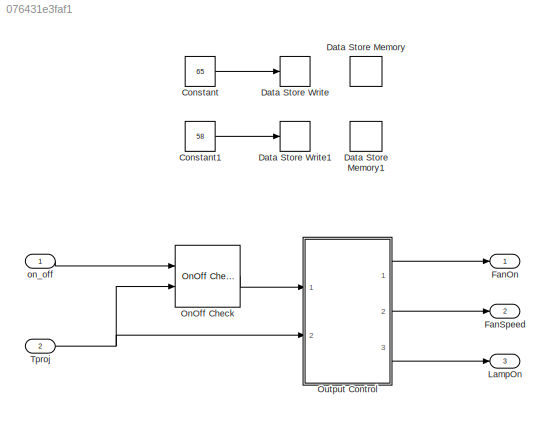
MODEL slx_076431e3faf1
KIND model
CONFIG AbsTol = auto
CONFIG FixedStep = 0.1
CONFIG MaxStep = auto
CONFIG MinStep = auto
CONFIG RelTol = 1e-3
CONFIG SampleTimeConstraint = Unconstrained
CONFIG Solver = FixedStepDiscrete
CONFIG SolverMode = Auto
CONFIG SolverName = FixedStepDiscrete
CONFIG StartTime = 0.0
CONFIG StopTime = 30
BLOCK [Constant] Constant
  OutDataTypeStr = single
  Value = 65
BLOCK [Constant] Constant1
  OutDataTypeStr = single
  Value = 58
BLOCK [DataStoreMemory] Data Store Memory
  DataStoreName = Tmax
  OutDataTypeStr = single
  ReadBeforeWriteMsg = warning
  ShowAdditionalParam = off
  SignalType = real
  WriteAfterReadMsg = warning
  WriteAfterWriteMsg = warning
BLOCK [DataStoreMemory] Data Store Memory1
  DataStoreName = Tfan
  OutDataTypeStr = single
  ReadBeforeWriteMsg = warning
  ShowAdditionalParam = off
  SignalType = real
  WriteAfterReadMsg = warning
  WriteAfterWriteMsg = warning
BLOCK [DataStoreWrite] Data Store Write
  DataStoreName = Tmax
  Ports = [1]
BLOCK [DataStoreWrite] Data Store Write1
  DataStoreName = Tfan
  Ports = [1]
BLOCK [Outport] FanOn
  IconDisplay = Port number
BLOCK [Outport] FanSpeed
  IconDisplay = Port number
  Port = 2
BLOCK [Outport] LampOn
  IconDisplay = Port number
  Port = 3
BLOCK [Reference] OnOff Check  REF=sltestProjectorCtrlLibrary/OnOff Check
  Ports = [2, 1]
  SourceBlock = sltestProjectorCtrlLibrary/OnOff Check
  SourceType = SubSystem
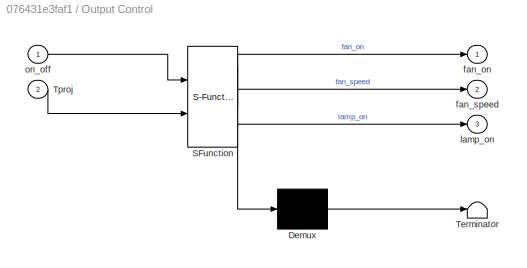
BLOCK [SubSystem] Output Control
  ErrorFcn = Stateflow.Translate.translate
  PermitHierarchicalResolution = ExplicitOnly
  Ports = [2, 3]
  RequestExecContextInheritance = off
  SFBlockType = Chart
  TreatAsAtomicUnit = on
  Variant = off
BLOCK [Demux] Output Control/ Demux 
  Outputs = 1
  Ports = [1, 1]
BLOCK [S-Function] Output Control/ SFunction 
  EnableBusSupport = on
  FunctionName = sf_sfun
  PortCounts = [2 4]
  Ports = [2, 4]
  SFunctionDeploymentMode = off
  Tag = Stateflow S-Function sltestProjectorController 3
BLOCK [Terminator] Output Control/ Terminator 
BLOCK [Inport] Output Control/Tproj
  IconDisplay = Port number
  Port = 2
BLOCK [Outport] Output Control/fan_on
  IconDisplay = Port number
BLOCK [Outport] Output Control/fan_speed
  IconDisplay = Port number
  Port = 2
BLOCK [Outport] Output Control/lamp_on
  IconDisplay = Port number
  Port = 3
BLOCK [Inport] Output Control/on_off
  IconDisplay = Port number
BLOCK [Inport] Tproj
  IconDisplay = Port number
  Port = 2
BLOCK [Inport] on_off
  IconDisplay = Port number
LINE Constant1:1 -> Data Store Write1:1
LINE Constant:1 -> Data Store Write:1
LINE OnOff Check:1 -> Output Control:1
LINE Output Control:1 -> FanOn:1
LINE Output Control:2 -> FanSpeed:1
LINE Output Control:3 -> LampOn:1
NET Tproj:1 -> OnOff Check:2, Output Control:2
LINE on_off:1 -> OnOff Check:1
note: NET lines group one-source signal fan-out (src -> all destinations, sorted); 1:1 wires keep LINE
CHART Test Sequence states=6 transitions=6
  STATE_LABEL 'initialize\non_off = false;\nTproj = single(0);'
  STATE_LABEL 'Normal_on_off\nend_test = 0;'
  STATE_LABEL 'On\non_off = true;'
  STATE_LABEL "Wait\non_off = false;\nverify(FanOn == true,...\n    'Simulink:verify_scenario1',...\n    'Fan should be active');"
  STATE_LABEL 'Off\non_off = true;'
  STATE_LABEL 'End\non_off = false;\nend_test = 1;'
  STATE_LABEL '[FanOn == true]'
  STATE_LABEL '[after(20,sec)\n]'
  STATE_LABEL '[FanOn == false]'
  STATE_LABEL 'On\non_off = true;'
  STATE_LABEL "Wait\non_off = false;\nverify(FanOn == true,...\n    'Simulink:verify_scenario1',...\n    'Fan should be active');"
  STATE_LABEL 'Off\non_off = true;'
  STATE_LABEL 'End\non_off = false;\nend_test = 1;'
CHART Test Sequence states=18 transitions=24
  STATE_LABEL 'Initialize\non_off = false;\nTproj = single(0);\ntestFlag = 0;'
  STATE_LABEL 'On_tests'
  STATE_LABEL 'Zero\non_off = false;'
  STATE_LABEL "ShortPress\non_off = true;\ntestFlag = 1;\nverify(FanOn == false,...\n    'Simulink:verify_sc2_on',...\n    'Fan should be inactive after short press')"
  STATE_LABEL "LongPress\non_off = true;\ntestFlag = 2;\nverify(~(et > 0.5) || FanOn == true,...\n    'Simulink:verify_sc2_on',...\n    'Fan should be active after long press')"
  STATE_LABEL 'End'
  STATE_LABEL '[testFlag == 1\n]'
  STATE_LABEL '[testFlag == 0\n]'
  STATE_LABEL '[after(0.5,sec)\n]'
  STATE_LABEL '[after(3,sec)\n]'
  STATE_LABEL 'Zero\non_off = false;'
  STATE_LABEL "ShortPress\non_off = true;\ntestFlag = 1;\nverify(FanOn == false,...\n    'Simulink:verify_sc2_on',...\n    'Fan should be inactive after short press')"
  STATE_LABEL "LongPress\non_off = true;\ntestFlag = 2;\nverify(~(et > 0.5) || FanOn == true,...\n    'Simulink:verify_sc2_on',...\n    'Fan should be active after long press')"
  STATE_LABEL 'End'
  STATE_LABEL 'ResetFlag\ntestFlag = 0;'
  STATE_LABEL 'Off_tests'
  STATE_LABEL 'SystemOn\non_off = true;'
  STATE_LABEL 'LongPress'
  STATE_LABEL 'Press\non_off = true;'
  STATE_LABEL "Release\non_off = false;\nverify(LampOn == false,...\n    'Simulink:verify_sc2_off',...\n    'Lamp should be off after long press')\ntestFlag = 1;"
  STATE_LABEL '[after(2.5,sec)\n]'
  STATE_LABEL 'DoublePress'
  STATE_LABEL 'Press1\non_off = true;'
  STATE_LABEL 'Release1\non_off = false;'
  STATE_LABEL 'Press2\non_off = true;'
  STATE_LABEL "Release2\non_off = false;\nverify(LampOn == true,...\n    'Simulink:verify_sc2_off',...\n    'Lamp should be on after double short press')\ntestFlag = 2;"
  STATE_LABEL '[after(0.7,sec)\n]'
  STATE_LABEL '[true\n]'
  STATE_LABEL '[after(0.7,sec)\n]'
  STATE_LABEL '[LampOn == true && testFlag == 1\n]'
  STATE_LABEL '[LampOn == true && testFlag == 0\n]'
  STATE_LABEL '[testFlag == 1\n]'
  STATE_LABEL 'SystemOn\non_off = true;'
  STATE_LABEL 'LongPress'
  STATE_LABEL 'Press\non_off = true;'
  STATE_LABEL "Release\non_off = false;\nverify(LampOn == false,...\n    'Simulink:verify_sc2_off',...\n    'Lamp should be off after long press')\ntestFlag = 1;"
  STATE_LABEL '[after(2.5,sec)\n]'
  STATE_LABEL 'Press\non_off = true;'
  STATE_LABEL "Release\non_off = false;\nverify(LampOn == false,...\n    'Simulink:verify_sc2_off',...\n    'Lamp should be off after long press')\ntestFlag = 1;"
  STATE_LABEL 'DoublePress'
CHART Test Sequence states=6 transitions=9
  STATE_LABEL 'Initialize\non_off = false;\nTproj = single(0);\ntestFlag = 0;\n'
  STATE_LABEL 'TurnOn\non_off = true;'
  STATE_LABEL 'Overheat\nTproj = single(23+ramp(5*et));'
  STATE_LABEL "Hold\nTproj = latch(Tproj);\nverify(LampOn == false &&...\n    FanSpeed == High && FanOn == true,...\n    'Simulink:verify_sc3_overheat',...\n    'At overheat fan must be high and lamp off');"
  STATE_LABEL "TryToTurnOn\non_off = true;\nverify(LampOn == false,...\n    'Simulink:verify_sc3_overheat',...\n    'At overheat lamp must not activate');\n"
  STATE_LABEL 'End\nTproj = single(23);'
CHART Test Sequence states=10 transitions=10
  STATE_LABEL 'Initialize\non_off = false;\nTproj = single(50);'
  STATE_LABEL 'TryToTurnOn\non_off = true;'
  STATE_LABEL "Check\non_off = false;\nverify(FanOn == false && LampOn == false,...\n    'Simulink:verify_sc4_on',...\n    'System must not activate above max on temp')"
  STATE_LABEL 'Initialize2\non_off = false;\nTproj = single(23);'
  STATE_LABEL 'TurnProjOn\non_off = true;'
  STATE_LABEL 'ReleaseButton\non_off = false;'
  STATE_LABEL 'SetHighTemp\nTproj = single(50);'
  STATE_LABEL 'TryToTurnOff\non_off = true;'
  STATE_LABEL "Check2\non_off = false;\nverify(FanOn == false && LampOn == false,...\n    'Simulink:verify_sc4_off',...\n    'System should turn off above max on temp')"
  STATE_LABEL 'End'
CHART Output Control states=12 transitions=22
  STATE_LABEL 'Standby\nentry: fan_on = false;\n lamp_on = false;\n'
  STATE_LABEL 'Switch_off'
  STATE_LABEL 'Switch_on'
  STATE_LABEL '[on_off == 1]'
  STATE_LABEL '[on_off == 1]'
  STATE_LABEL '[on_off == 0]'
  STATE_LABEL 'Switch_off'
  STATE_LABEL 'Switch_on'
  STATE_LABEL 'Overheat\nentry: lamp_on = false;\n fan_speed = High'
  STATE_LABEL 'Running\n'
  STATE_LABEL 'Projecting_normal\nentry:lamp_on = true;'
  STATE_LABEL 'Switch_on'
  STATE_LABEL 'Switch_off'
  STATE_LABEL '[on_off == 1]'
  STATE_LABEL '[on_off == 0]'
  STATE_LABEL 'Fan_on\nentry: fan_on  = true;\n fan_speed = Low;'
  STATE_LABEL 'Projecting_hot\nentry: fan_speed = High;'
  STATE_LABEL 'Switch_on1'
  STATE_LABEL 'Switch_off'
  STATE_LABEL '[on_off == 1]'
  STATE_LABEL '[on_off == 0]'
  STATE_LABEL 'after(2,sec)'
  STATE_LABEL '[Tproj < Tfan]'
  STATE_LABEL '[Tproj >= Tfan]'
  STATE_LABEL 'after(10,sec)[Tproj < Tfan]'
  STATE_LABEL 'Projecting_normal\nentry:lamp_on = true;'
  STATE_LABEL 'Switch_on'
  STATE_LABEL 'Switch_off'
  STATE_LABEL '[on_off == 1]'
  STATE_LABEL '[on_off == 0]'
  STATE_LABEL 'Switch_on'
  STATE_LABEL 'Switch_off'
  STATE_LABEL 'Fan_on\nentry: fan_on  = true;\n fan_speed = Low;'
  STATE_LABEL 'Projecting_hot\nentry: fan_speed = High;'
  STATE_LABEL 'Switch_on1'
  STATE_LABEL 'Switch_off'
  STATE_LABEL '[on_off == 1]'
  STATE_LABEL '[on_off == 0]'
  STATE_LABEL 'Switch_on1'
  STATE_LABEL 'Switch_off'
